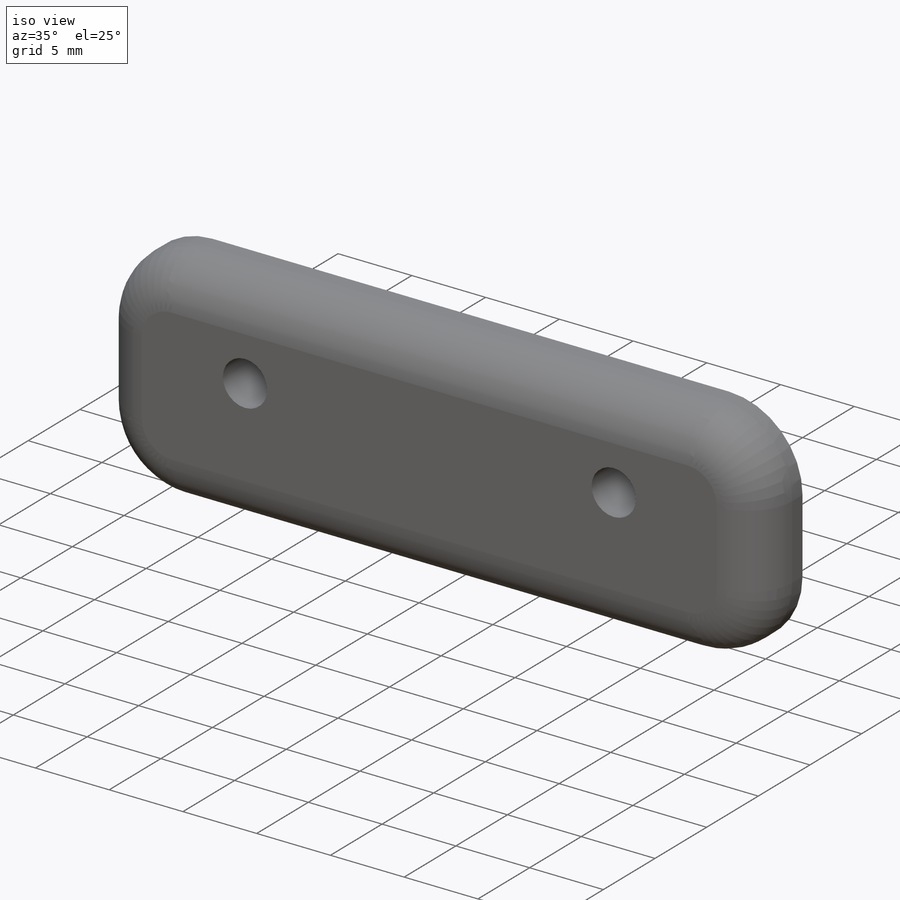
[diagram: iso view]
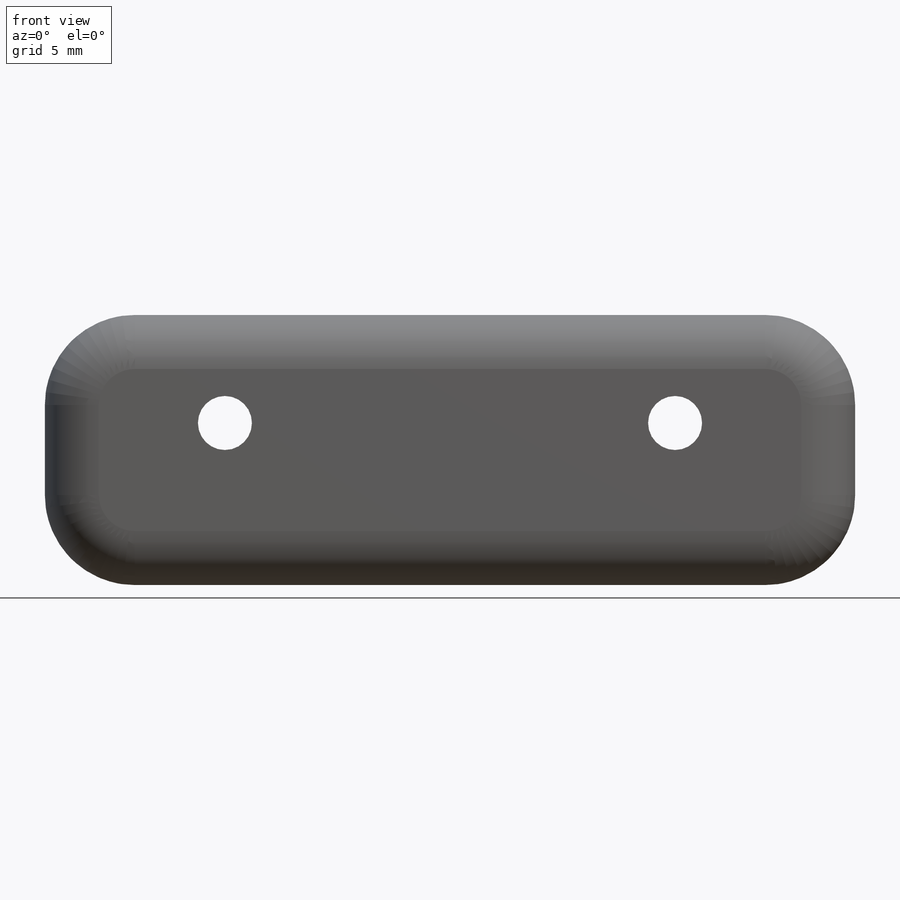
[diagram: front view]
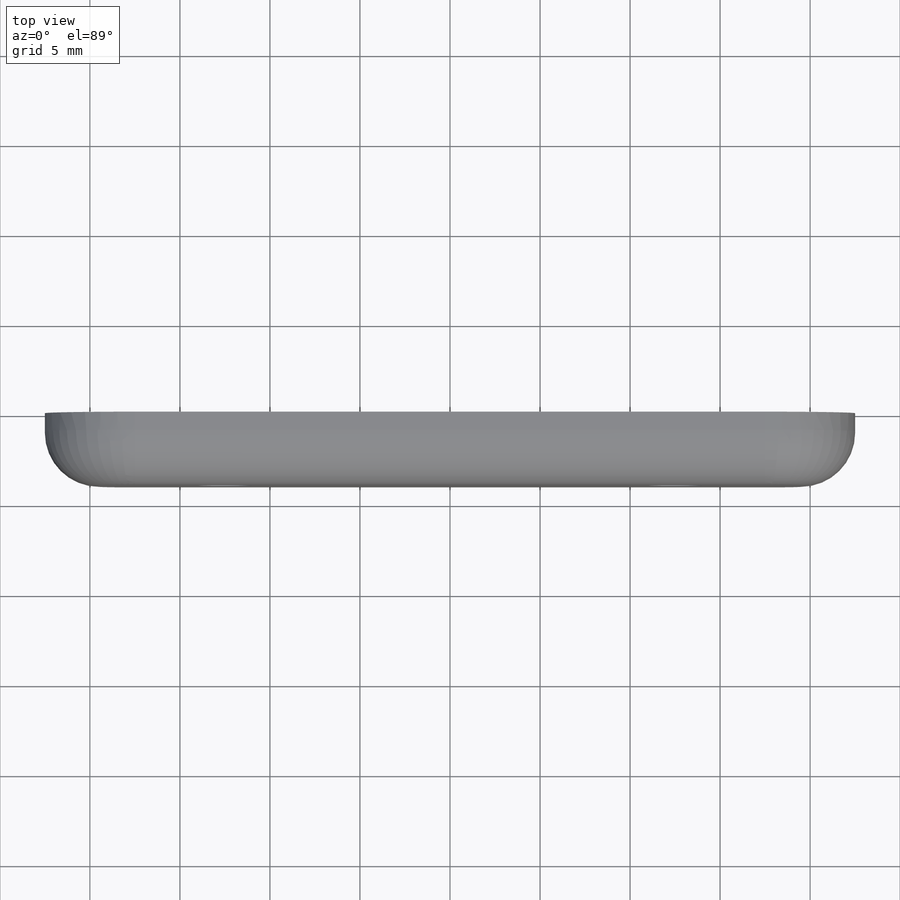
[diagram: top view]
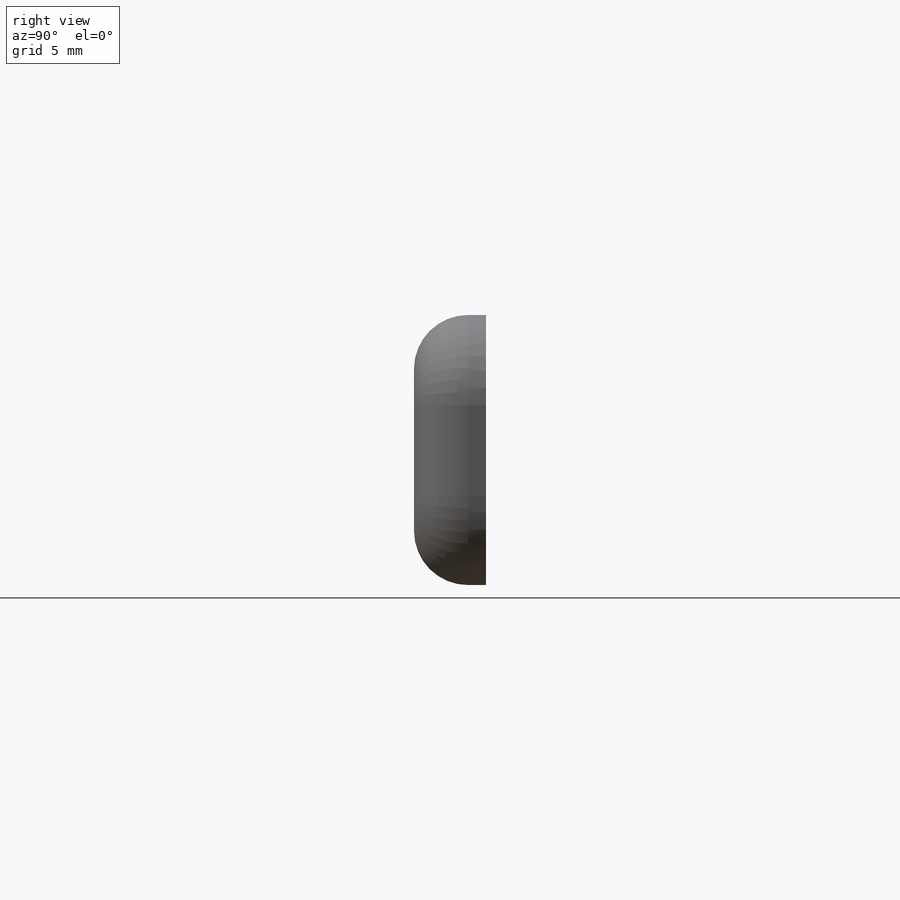
[diagram: right view]
SOLIDWORKS PART (.sldprt)
format: sldprt  version: not decoded by parser v0  size: 227,840 bytes
history: native  units: mm
features: plane x3, sketch x2, fillet x2, material x1, extrude x1, cut_extrude x1 (+10 scaffold rows collapsed)
feature tree (20):
  scaffold x10  (default folders/planes/origin — collapsed)
  material  "Alliage 2018"
  plane  "Plan de face"
  plane  "Plan de dessus"
  plane  "Plan de droite"
  sketch  "Esquisse1"  dims[c1.D1=~19.766068mm c1.D2=~61.803762mm c2.D1=45.0mm c2.D2=15.0mm]
  extrude  "Boss.-Extru.1"  Depth=4mm
  sketch  "Esquisse2"  dims[D4=3.0mm D5=3.0mm D1=10.0mm D2=10.0mm D3=6.0mm]
  fillet  "Congé1"  Radius=5mm
  fillet  "Congé2"  Radius=3mm
  cut_extrude  "Enlèv. mat.-Extru.1"  [1 undecoded]
decode coverage: 5 of 6 modeling features carry decoded parameters
note: ~ marks probable driven/reference dimensions
note: 1 parameter value undecoded
note: suppression state not decoded; provenance and decode notes live in map.json
